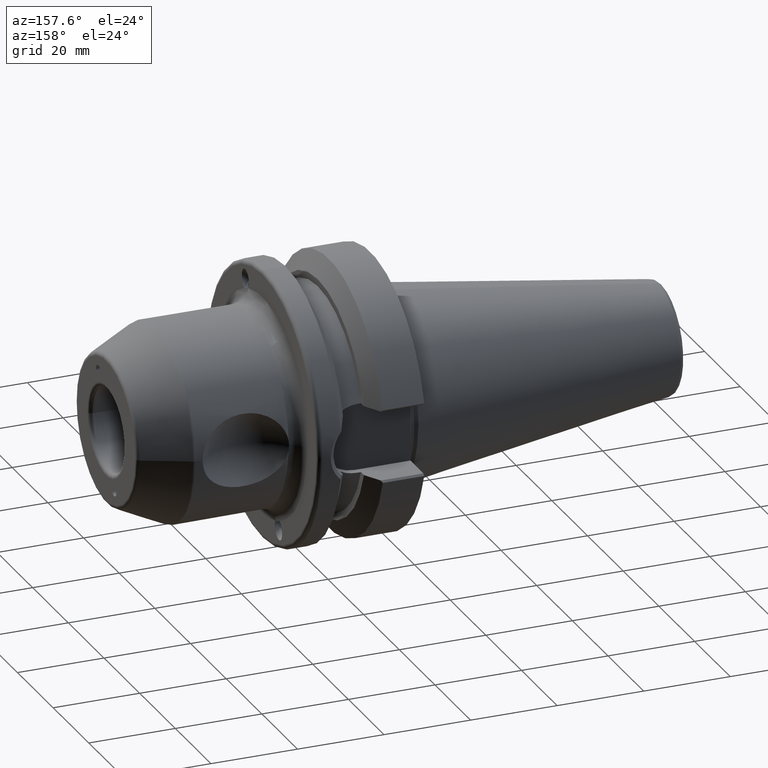
[diagram: clean part render]
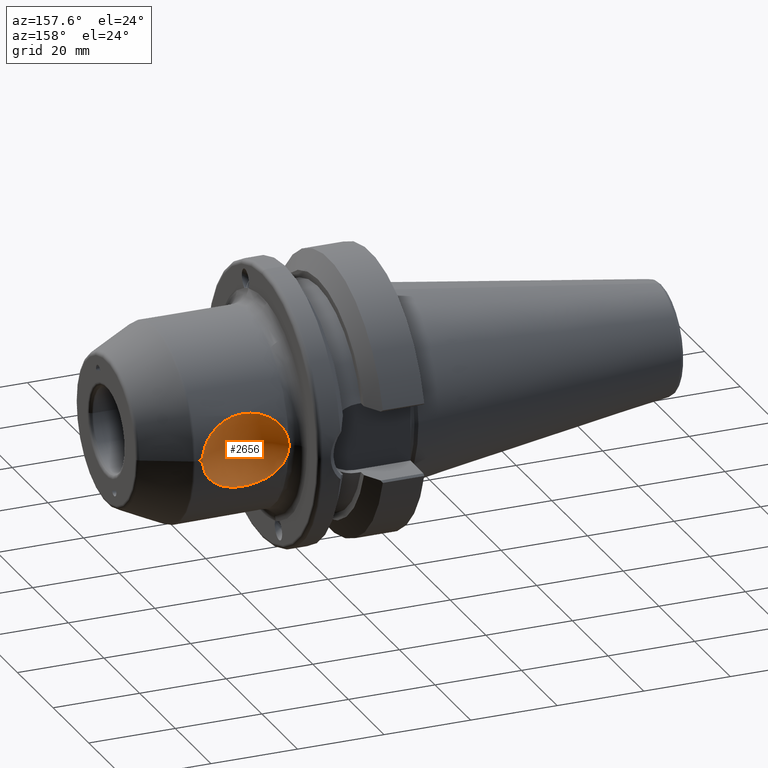
[diagram: same view with one face highlighted and labeled with its STEP entity id]
A machine part, auxiliary view. The second image highlights one B-rep face of the part: STEP entity #2656.
In plain terms, the highlighted spherical surface has radius 12.5 mm.
Its self-contained STEP definition (entity closure, byte-faithful):
#307=CARTESIAN_POINT('',(4.99E1,2.2225E1,0.E0));
#308=CARTESIAN_POINT('',(4.99E1,2.2225E1,3.630115564108E-1));
#309=CARTESIAN_POINT('',(4.985008308141E1,2.220810348539E1,1.095261380611E0));
#310=CARTESIAN_POINT('',(4.957885241600E1,2.211801236820E1,2.276243612510E0));
#311=CARTESIAN_POINT('',(4.915081259436E1,2.198102849458E1,3.336138704336E0));
#312=CARTESIAN_POINT('',(4.858722862228E1,2.181015249122E1,4.309055189650E0));
#313=CARTESIAN_POINT('',(4.789596621731E1,2.161519115039E1,5.194800210705E0));
#314=CARTESIAN_POINT('',(4.707038845970E1,2.140318550125E1,6.005949479731E0));
#315=CARTESIAN_POINT('',(4.609775756960E1,2.118315299958E1,6.737144840002E0));
#316=CARTESIAN_POINT('',(4.504486960430E1,2.098172880978E1,7.336375902990E0));
#317=CARTESIAN_POINT('',(4.393610505537E1,2.080921122913E1,7.809919920117E0));
#318=CARTESIAN_POINT('',(4.268043976762E1,2.066311083412E1,8.187042703047E0));
#319=CARTESIAN_POINT('',(4.121064035787E1,2.055616612386E1,8.450098904092E0));
#320=CARTESIAN_POINT('',(3.943147990575E1,2.052970486322E1,8.513532788728E0));
#321=CARTESIAN_POINT('',(3.783727622736E1,2.060183454173E1,8.339138451317E0));
#322=CARTESIAN_POINT('',(3.638508446645E1,2.074006335651E1,7.991680881893E0));
#323=CARTESIAN_POINT('',(3.507856306305E1,2.092512457864E1,7.497447659871E0));
#324=CARTESIAN_POINT('',(3.387359013477E1,2.114661283465E1,6.852489932682E0));
#325=CARTESIAN_POINT('',(3.283264315147E1,2.137809109909E1,6.095457198134E0));
#326=CARTESIAN_POINT('',(3.197652076409E1,2.159562239144E1,5.275682311275E0));
#327=CARTESIAN_POINT('',(3.127396986170E1,2.179226927571E1,4.397407747677E0));
#328=CARTESIAN_POINT('',(3.069885677167E1,2.196552788324E1,3.437351008359E0));
#329=CARTESIAN_POINT('',(3.025512540069E1,2.210691226248E1,2.375959674534E0));
#330=CARTESIAN_POINT('',(3.006524983006E1,2.216979484213E1,1.614844183372E0));
#331=CARTESIAN_POINT('',(3.E1,2.219152649285E1,1.219334620643E0));
#358=CARTESIAN_POINT('',(3.E1,2.219152649285E1,-1.219334620643E0));
#359=CARTESIAN_POINT('',(3.006319802226E1,2.217047820285E1,-1.602407222162E0));
#360=CARTESIAN_POINT('',(3.024499105409E1,2.211026400389E1,-2.339886922726E0));
#361=CARTESIAN_POINT('',(3.066947406966E1,2.197476561405E1,-3.375002878834E0));
#362=CARTESIAN_POINT('',(3.121112090373E1,2.181090018866E1,-4.300864861150E0));
#363=CARTESIAN_POINT('',(3.185436308196E1,2.162895811646E1,-5.135350600323E0));
#364=CARTESIAN_POINT('',(3.265843465995E1,2.142040782666E1,-5.945750487329E0));
#365=CARTESIAN_POINT('',(3.370019293439E1,2.118169114524E1,-6.746144283316E0));
#366=CARTESIAN_POINT('',(3.501723715098E1,2.093242955769E1,-7.480033233235E0));
#367=CARTESIAN_POINT('',(3.656124230511E1,2.071513277005E1,-8.057255833251E0));
#368=CARTESIAN_POINT('',(3.829722550568E1,2.056810788872E1,-8.421465297971E0));
#369=CARTESIAN_POINT('',(4.008464802784E1,2.052641996799E1,-8.521365306746E0));
#370=CARTESIAN_POINT('',(4.172186474655E1,2.058626874482E1,-8.377068702055E0));
#371=CARTESIAN_POINT('',(4.307431501721E1,2.070375400722E1,-8.084034125055E0));
#372=CARTESIAN_POINT('',(4.424956591871E1,2.085431514224E1,-7.688947534221E0));
#373=CARTESIAN_POINT('',(4.530449139633E1,2.102827942542E1,-7.202294617377E0));
#374=CARTESIAN_POINT('',(4.631726187861E1,2.123026786376E1,-6.587403308214E0));
#375=CARTESIAN_POINT('',(4.723459967482E1,2.144378090986E1,-5.858908845843E0));
#376=CARTESIAN_POINT('',(4.801420258781E1,2.164756586763E1,-5.057426808997E0));
#377=CARTESIAN_POINT('',(4.866662985403E1,2.183371069950E1,-4.186599697901E0));
#378=CARTESIAN_POINT('',(4.919721816320E1,2.199566591858E1,-3.235473075964E0));
#379=CARTESIAN_POINT('',(4.959929048600E1,2.212475537968E1,-2.204401712540E0));
#380=CARTESIAN_POINT('',(4.985389879496E1,2.220939914387E1,-1.055997259403E0));
#381=CARTESIAN_POINT('',(4.99E1,2.2225E1,-3.493887204605E-1));
#382=CARTESIAN_POINT('',(4.99E1,2.2225E1,0.E0));
#421=CARTESIAN_POINT('',(2.989871759724E1,2.222671017497E1,0.E0));
#422=CARTESIAN_POINT('',(2.989871759724E1,2.222671017497E1,-1.934786030928E-1));
#423=CARTESIAN_POINT('',(2.991413838233E1,2.222107590173E1,-5.902465465188E-1));
#424=CARTESIAN_POINT('',(2.996489904374E1,2.220321697114E1,-1.006571401934E0));
#425=CARTESIAN_POINT('',(3.E1,2.219152649285E1,-1.219334620643E0));
#442=CARTESIAN_POINT('',(3.E1,2.219152649285E1,1.219334620643E0));
#443=CARTESIAN_POINT('',(2.996494565705E1,2.220320144643E1,1.006853946930E0));
#444=CARTESIAN_POINT('',(2.991418507747E1,2.222105882438E1,5.908218291611E-1));
#445=CARTESIAN_POINT('',(2.989871759724E1,2.222671017497E1,1.937652764042E-1));
#446=CARTESIAN_POINT('',(2.989871759724E1,2.222671017497E1,0.E0));
#2154=VERTEX_POINT('',#307);
#2155=VERTEX_POINT('',#331);
#2156=VERTEX_POINT('',#446);
#2157=VERTEX_POINT('',#358);
#2642=CARTESIAN_POINT('',(3.99E1,2.9725E1,0.E0));
#2643=DIRECTION('',(1.E0,0.E0,0.E0));
#2644=DIRECTION('',(0.E0,1.E0,0.E0));
#2645=AXIS2_PLACEMENT_3D('',#2642,#2643,#2644);
#2646=SPHERICAL_SURFACE('',#2645,1.25E1);
#2648=ORIENTED_EDGE('',*,*,#2647,.T.);
#2649=ORIENTED_EDGE('',*,*,#2626,.T.);
#2651=ORIENTED_EDGE('',*,*,#2650,.T.);
#2653=ORIENTED_EDGE('',*,*,#2652,.T.);
#2654=EDGE_LOOP('',(#2648,#2649,#2651,#2653));
#2655=FACE_OUTER_BOUND('',#2654,.F.);
#2656=ADVANCED_FACE('',(#2655),#2646,.F.);
#332=B_SPLINE_CURVE_WITH_KNOTS('',3,(#307,#308,#309,#310,#311,#312,#313,#314,
#315,#316,#317,#318,#319,#320,#321,#322,#323,#324,#325,#326,#327,#328,#329,#330,
#331),.UNSPECIFIED.,.F.,.F.,(4,1,1,1,1,1,1,1,1,1,1,1,1,1,1,1,1,1,1,1,1,1,4),(
0.E0,4.545454545455E-2,9.090909090909E-2,1.363636363636E-1,1.818181818182E-1,
2.272727272727E-1,2.727272727273E-1,3.181818181818E-1,3.636363636364E-1,
4.090909090909E-1,4.545454545455E-1,5.E-1,5.454545454545E-1,5.909090909091E-1,
6.363636363636E-1,6.818181818182E-1,7.272727272727E-1,7.727272727273E-1,
8.181818181818E-1,8.636363636364E-1,9.090909090909E-1,9.545454545455E-1,1.E0),
.UNSPECIFIED.);
#383=B_SPLINE_CURVE_WITH_KNOTS('',3,(#358,#359,#360,#361,#362,#363,#364,#365,
#366,#367,#368,#369,#370,#371,#372,#373,#374,#375,#376,#377,#378,#379,#380,#381,
#382),.UNSPECIFIED.,.F.,.F.,(4,1,1,1,1,1,1,1,1,1,1,1,1,1,1,1,1,1,1,1,1,1,4),(
0.E0,4.545454545455E-2,9.090909090909E-2,1.363636363636E-1,1.818181818182E-1,
2.272727272727E-1,2.727272727273E-1,3.181818181818E-1,3.636363636364E-1,
4.090909090909E-1,4.545454545455E-1,5.E-1,5.454545454545E-1,5.909090909091E-1,
6.363636363636E-1,6.818181818182E-1,7.272727272727E-1,7.727272727273E-1,
8.181818181818E-1,8.636363636364E-1,9.090909090909E-1,9.545454545455E-1,1.E0),
.UNSPECIFIED.);
#426=B_SPLINE_CURVE_WITH_KNOTS('',3,(#421,#422,#423,#424,#425),.UNSPECIFIED.,
.F.,.F.,(4,1,4),(0.E0,5.E-1,1.E0),.UNSPECIFIED.);
#447=B_SPLINE_CURVE_WITH_KNOTS('',3,(#442,#443,#444,#445,#446),.UNSPECIFIED.,
.F.,.F.,(4,1,4),(0.E0,5.E-1,1.E0),.UNSPECIFIED.);
#2626=EDGE_CURVE('',#2154,#2155,#332,.T.);
#2647=EDGE_CURVE('',#2157,#2154,#383,.T.);
#2650=EDGE_CURVE('',#2155,#2156,#447,.T.);
#2652=EDGE_CURVE('',#2156,#2157,#426,.T.);